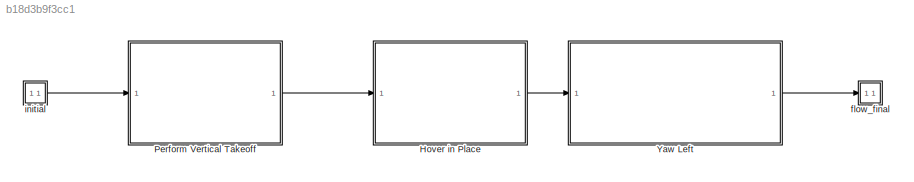
MODEL slx_b18d3b9f3cc1
KIND model
CONFIG AbsTol = auto
CONFIG EnableMultiTasking = off
CONFIG FixedStep = auto
CONFIG MaxStep = auto
CONFIG MinStep = auto
CONFIG RelTol = 1e-3
CONFIG SampleTimeConstraint = Unconstrained
CONFIG SolverName = VariableStepAuto
CONFIG StartTime = 0.0
CONFIG StopTime = 10.0
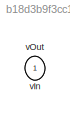
BLOCK [SubSystem] Hover in Place
  CopyFcn = set_param(gcbh,'LinkStatus','none');
  MaskHideContents = on
BLOCK [Inport] Hover in Place/vIn
BLOCK [Outport] Hover in Place/vOut
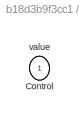
BLOCK [SubSystem] Perform Vertical Takeoff
  CopyFcn = set_param(gcbh,'LinkStatus','none');
  MaskHideContents = on
BLOCK [Inport] Perform Vertical Takeoff/Control
BLOCK [Outport] Perform Vertical Takeoff/value
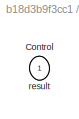
BLOCK [SubSystem] Yaw Left
  CopyFcn = set_param(gcbh,'LinkStatus','none');
  MaskHideContents = on
BLOCK [Outport] Yaw Left/Control
BLOCK [Inport] Yaw Left/result
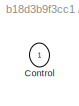
BLOCK [SubSystem] flow_final
  CopyFcn = set_param(gcbh,'LinkStatus','none');
  MaskHideContents = on
BLOCK [Inport] flow_final/Control
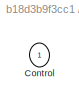
BLOCK [SubSystem] initial
  CopyFcn = set_param(gcbh,'LinkStatus','none');
  MaskHideContents = on
BLOCK [Outport] initial/Control
LINE Hover in Place:1 -> Yaw Left:1
LINE Perform Vertical Takeoff:1 -> Hover in Place:1
LINE Yaw Left:1 -> flow_final:1
LINE initial:1 -> Perform Vertical Takeoff:1
